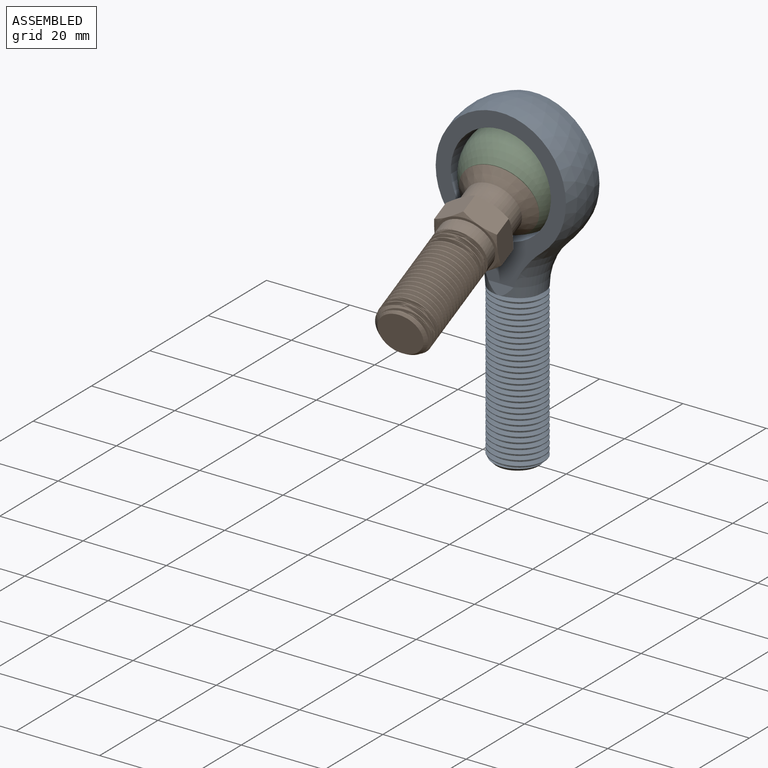
[diagram: assembled view]
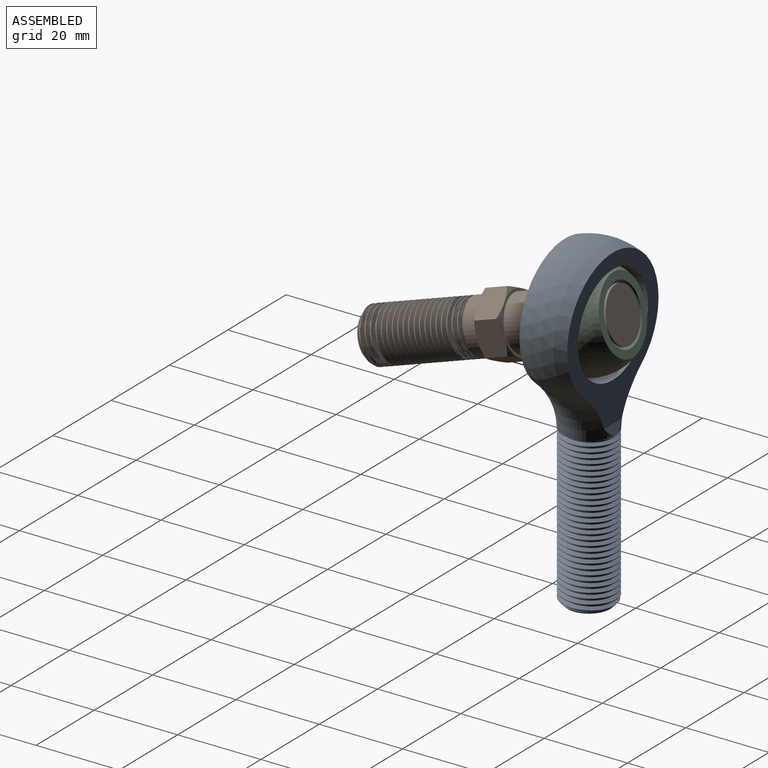
[diagram: assembled view, second angle]
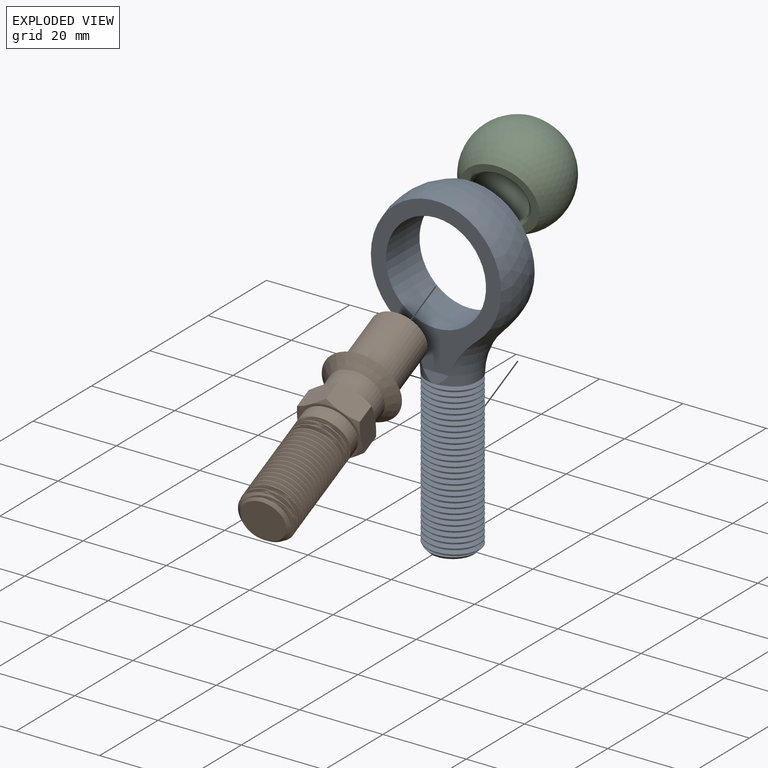
[diagram: exploded view]
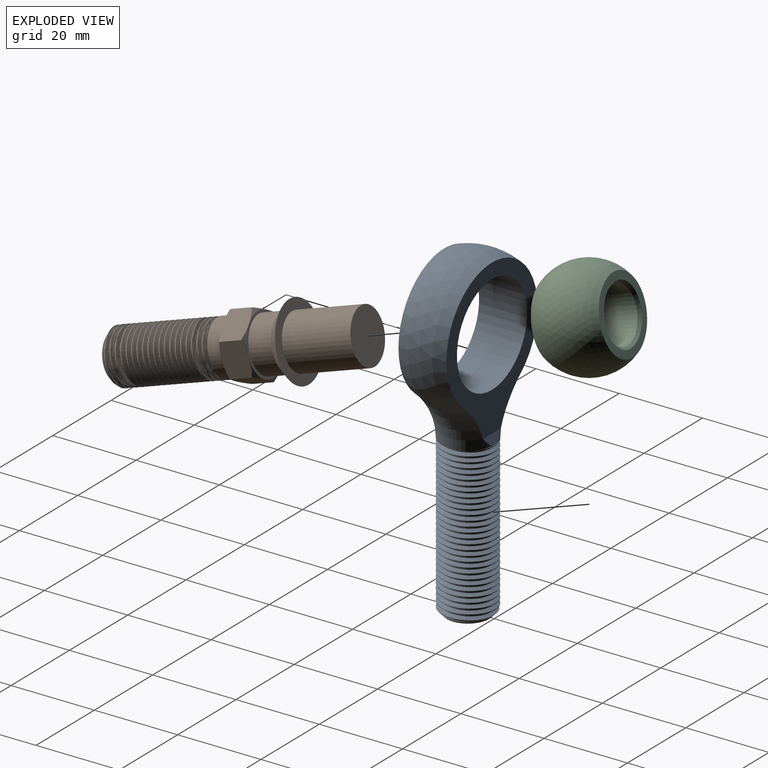
[diagram: exploded view, second angle]
ASSEMBLY  parts=3 mates=2
PART A: 15 faces, bbox 49.1x49.1x79.4 mm
  f0: cylinder r=12.02mm len=24.04mm, axis (0,-1,0), area 868.9mm2, adj f11,f13
  f1: sphere r=16.67mm, area 925mm2, adj f2,f5,f11,f13
  f2: torus R=22.32mm, axis (0,0,-1), area 180.3mm2, adj f1,f4,f10,f11,f12,f13,f14
  f3: cone r=6.35mm half-angle=45deg, axis (0,0,1), area 42.3mm2, adj f4,f6,f7,f8,f9
  f4: cylinder r=6.35mm len=36.83mm, axis (0,0,1), area 183.7mm2, adj f2,f3,f7,f9
  f5: torus R=22.32mm, axis (0,0,-1), area 180.3mm2, adj f1,f10,f11,f12,f13,f14
  f6: plane 10.16x10.16mm, normal (0,0,-1), area 81.1mm2, adj f3
  f7: bspline ~38.61x12.69mm, area 1045.1mm2, adj f3,f4,f8,f10
  f8: bspline ~38.26x11.05mm, area 163.9mm2, adj f3,f7,f9,f10
  f9: bspline ~38.42x12.7mm, area 1045.6mm2, adj f3,f4,f8,f10
  f10: plane 13.2x13.2mm, normal (0,0,-1), area 15.6mm2, adj f2,f5,f7,f8,f9
  f11: plane 37.68x31.81mm, normal (0,-1,0), area 376.7mm2, adj f0,f1,f2,f5,f12
  f12: plane 6.91x3.09mm, normal (0,-0.97,0.25), area 9.3mm2, adj f2,f5,f11
  f13: plane 37.68x31.81mm, normal (0,1,0), area 376.7mm2, adj f0,f1,f2,f5,f14
  f14: plane 6.91x3.09mm, normal (0,0.97,0.25), area 9.3mm2, adj f2,f5,f13
PART B: 51 faces, bbox 18.4x59.7x18.4 mm
  f0: cylinder r=6.35mm len=16mm, axis (0,-1,0), area 638.5mm2, adj f49,f50
  f1: cone r=8.87mm half-angle=45deg, axis (0,1,0), area 170.1mm2, adj f2,f49
  f2: cylinder r=6.35mm len=12.7mm, axis (0,-1,0), area 211.2mm2, adj f1,f48
  f3: cylinder r=6.35mm len=12.7mm, axis (0,-1,0), area 131.8mm2, adj f4,f30,f32,f34,f35
  f4: cylinder r=6.35mm len=12.7mm, axis (0,-1,0), area 6.3mm2, adj f3,f5,f32,f34
  f5: cylinder r=6.35mm len=12.7mm, axis (0,-1,0), area 6.3mm2, adj f4,f6,f32,f34
  f6: cylinder r=6.35mm len=12.7mm, axis (0,-1,0), area 6.3mm2, adj f5,f7,f32,f34
  f7: cylinder r=6.35mm len=12.7mm, axis (0,-1,0), area 6.3mm2, adj f6,f8,f32,f34
  f8: cylinder r=6.35mm len=12.7mm, axis (0,-1,0), area 6.3mm2, adj f7,f9,f32,f34
  f9: cylinder r=6.35mm len=12.7mm, axis (0,-1,0), area 6.3mm2, adj f8,f10,f32,f34
  f10: cylinder r=6.35mm len=12.7mm, axis (0,-1,0), area 6.3mm2, adj f9,f11,f32,f34
  f11: cylinder r=6.35mm len=12.7mm, axis (0,-1,0), area 6.3mm2, adj f10,f12,f32,f34
  f12: cylinder r=6.35mm len=12.7mm, axis (0,-1,0), area 6.3mm2, adj f11,f13,f32,f34
  f13: cylinder r=6.35mm len=12.7mm, axis (0,-1,0), area 6.3mm2, adj f12,f14,f32,f34
  f14: cylinder r=6.35mm len=12.7mm, axis (0,-1,0), area 6.3mm2, adj f13,f15,f32,f34
  f15: cylinder r=6.35mm len=12.7mm, axis (0,-1,0), area 6.3mm2, adj f14,f16,f32,f34
  f16: cylinder r=6.35mm len=12.7mm, axis (0,-1,0), area 6.3mm2, adj f15,f17,f32,f34
  f17: cylinder r=6.35mm len=12.7mm, axis (0,-1,0), area 6.3mm2, adj f16,f18,f32,f34
  f18: cylinder r=6.35mm len=12.7mm, axis (0,-1,0), area 6.3mm2, adj f17,f19,f32,f34
  f19: cylinder r=6.35mm len=12.7mm, axis (0,-1,0), area 6.3mm2, adj f18,f20,f32,f34
  f20: cylinder r=6.35mm len=12.7mm, axis (0,-1,0), area 6.3mm2, adj f19,f21,f32,f34
  f21: cylinder r=6.35mm len=12.7mm, axis (0,-1,0), area 6.3mm2, adj f20,f22,f32,f34
  f22: cylinder r=6.35mm len=6.35mm, axis (0,-1,0), area 1.2mm2, adj f21,f23,f32,f34
  f23: cone r=5.08mm half-angle=45deg, axis (0,1,0), area 42.3mm2, adj f22,f31,f32,f33,f34
  f24: plane 7.65x7.01mm, normal (-0.5,0,0.87), area 47.8mm2, adj f25,f29,f36,f37,f42,f47
  f25: plane 8.73x7.02mm, normal (-1,0,0), area 47.8mm2, adj f24,f26,f37,f38,f46,f47
  f26: plane 7.65x7.01mm, normal (-0.5,0,-0.87), area 47.8mm2, adj f25,f27,f38,f39,f45,f46
  f27: plane 7.65x7.01mm, normal (0.5,0,-0.87), area 47.8mm2, adj f26,f28,f39,f40,f44,f45
  f28: plane 8.73x7.02mm, normal (1,0,0), area 47.8mm2, adj f27,f29,f40,f41,f43,f44
  f29: plane 7.65x7.01mm, normal (0.5,0,0.87), area 47.8mm2, adj f24,f28,f36,f41,f42,f43
  f30: plane 13.97x13.97mm, normal (0,-1,0), area 26.6mm2, adj f3,f36,f37,f38,f39,f40,f41
  f31: plane 10.16x10.16mm, normal (0,-1,0), area 81.1mm2, adj f23
  f32: bspline ~25.43x12.37mm, area 686.7mm2, adj f3,f4,f5,f6,f7,f8,f9,f10
  f33: bspline ~25.27x11.05mm, area 108.6mm2, adj f23,f32,f34,f35
  f34: bspline ~26.19x12.7mm, area 691mm2, adj f3,f4,f5,f6,f7,f8,f9,f10
  f35: plane 13.2x13.2mm, normal (0,-1,0), area 15.6mm2, adj f3,f32,f33,f34
  f36: cone r=6.99mm half-angle=60deg, axis (0,1,0), area 4.8mm2, adj f24,f29,f30
  f37: cone r=6.99mm half-angle=60deg, axis (0,1,0), area 4.8mm2, adj f24,f25,f30
  f38: cone r=6.99mm half-angle=60deg, axis (0,1,0), area 4.8mm2, adj f25,f26,f30
  f39: cone r=6.99mm half-angle=60deg, axis (0,1,0), area 4.8mm2, adj f26,f27,f30
  f40: cone r=6.99mm half-angle=60deg, axis (0,1,0), area 4.8mm2, adj f27,f28,f30
  f41: cone r=6.99mm half-angle=60deg, axis (0,1,0), area 4.8mm2, adj f28,f29,f30
  f42: cone r=6.99mm half-angle=60deg, axis (0,-1,0), area 4.8mm2, adj f24,f29,f48
  f43: cone r=6.99mm half-angle=60deg, axis (0,-1,0), area 4.8mm2, adj f28,f29,f48
  f44: cone r=6.99mm half-angle=60deg, axis (0,-1,0), area 4.8mm2, adj f27,f28,f48
  f45: cone r=6.99mm half-angle=60deg, axis (0,-1,0), area 4.8mm2, adj f26,f27,f48
  f46: cone r=6.99mm half-angle=60deg, axis (0,-1,0), area 4.8mm2, adj f25,f26,f48
  f47: cone r=6.99mm half-angle=60deg, axis (0,-1,0), area 4.8mm2, adj f24,f25,f48
  f48: plane 13.97x13.97mm, normal (0,1,0), area 26.6mm2, adj f2,f42,f43,f44,f45,f46,f47
  f49: plane 17.73x17.73mm, normal (0,1,0), area 120.3mm2, adj f0,f1
  f50: plane 12.7x12.7mm, normal (0,1,0), area 126.7mm2, adj f0
PART C: 6 faces, bbox 23.8x15.9x23.8 mm
  f0: cone r=6.35mm half-angle=45deg, axis (0,-1,0), area 37.6mm2, adj f2,f4
  f1: cone r=6.99mm half-angle=45deg, axis (0,1,0), area 37.6mm2, adj f2,f5
  f2: cylinder r=6.35mm len=14.61mm, axis (0,-1,0), area 582.7mm2, adj f0,f1
  f3: sphere r=11.9mm, area 1187mm2, adj f4,f5
  f4: plane 17.73x17.73mm, normal (0,-1,0), area 93.7mm2, adj f0,f3
  f5: plane 17.73x17.73mm, normal (0,1,0), area 93.7mm2, adj f1,f3
PLACE A t=(-19.73,2.95,-11.82)mm fixed
PLACE B rot(axis=(0.91,0.15,0.38),18.2deg) t=(-21.25,9.68,-10.8)mm
PLACE C rot(axis=(0.91,0.15,0.38),18.2deg) t=(-21.25,9.68,-10.8)mm
MATE fastened B.f1 <-> C.f0  axis (-0.11,0.95,0.29) through (-20.63,10.5,14.28)mm
MATE ball C.f0 <-> A.f0  axis (0.11,-0.95,-0.29) through (-19.73,2.95,11.99)mm
